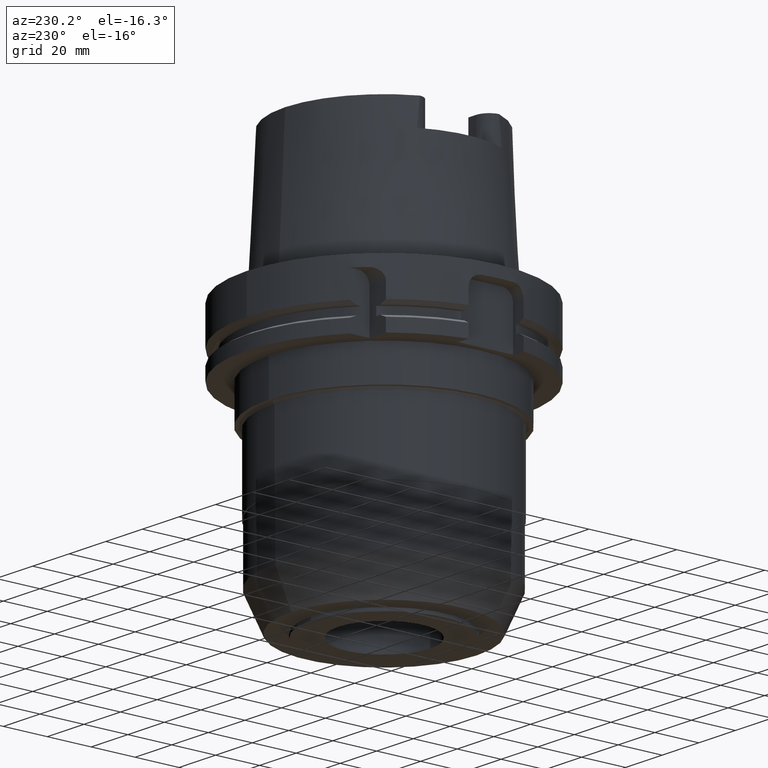
[diagram: clean part render]
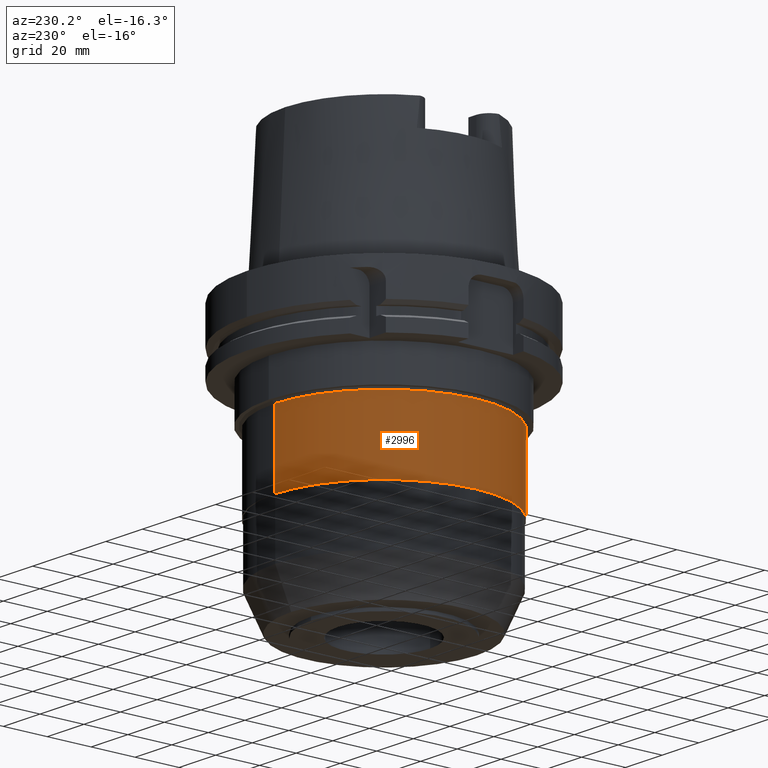
[diagram: same view with one face highlighted and labeled with its STEP entity id]
A machine part, auxiliary view. The second image highlights one B-rep face of the part: STEP entity #2996.
In plain terms, the highlighted cylindrical surface (partial cylindrical patch) has radius 49.85 mm, axis along (0, 0, -1).
Its self-contained STEP definition (entity closure, byte-faithful):
#819=CARTESIAN_POINT('',(0.E0,1.497130711958E-14,-7.89E1));
#820=DIRECTION('',(0.E0,0.E0,1.E0));
#821=DIRECTION('',(0.E0,1.E0,0.E0));
#822=AXIS2_PLACEMENT_3D('',#819,#820,#821);
#843=DIRECTION('',(0.E0,0.E0,-1.E0));
#844=VECTOR('',#843,3.29E1);
#845=CARTESIAN_POINT('',(0.E0,4.985E1,-4.6E1));
#846=LINE('',#845,#844);
#850=DIRECTION('',(0.E0,0.E0,-1.E0));
#851=VECTOR('',#850,3.29E1);
#852=CARTESIAN_POINT('',(0.E0,-4.985E1,-4.6E1));
#853=LINE('',#852,#851);
#864=CARTESIAN_POINT('',(0.E0,0.E0,-4.6E1));
#865=DIRECTION('',(0.E0,0.E0,-1.E0));
#866=DIRECTION('',(0.E0,-1.E0,0.E0));
#867=AXIS2_PLACEMENT_3D('',#864,#865,#866);
#2117=CARTESIAN_POINT('',(0.E0,-4.985E1,-7.89E1));
#2118=CARTESIAN_POINT('',(0.E0,4.985E1,-7.89E1));
#2119=VERTEX_POINT('',#2117);
#2120=VERTEX_POINT('',#2118);
#2121=CARTESIAN_POINT('',(0.E0,4.985E1,-4.6E1));
#2122=VERTEX_POINT('',#2121);
#2123=CARTESIAN_POINT('',(0.E0,-4.985E1,-4.6E1));
#2124=VERTEX_POINT('',#2123);
#2984=CARTESIAN_POINT('',(0.E0,1.497130711958E-14,7.225E1));
#2985=DIRECTION('',(0.E0,0.E0,-1.E0));
#2986=DIRECTION('',(0.E0,-1.E0,0.E0));
#2987=AXIS2_PLACEMENT_3D('',#2984,#2985,#2986);
#2988=CYLINDRICAL_SURFACE('',#2987,4.985E1);
#2989=ORIENTED_EDGE('',*,*,#2974,.F.);
#2991=ORIENTED_EDGE('',*,*,#2990,.F.);
#2992=ORIENTED_EDGE('',*,*,#2977,.T.);
#2993=ORIENTED_EDGE('',*,*,#2960,.F.);
#2994=EDGE_LOOP('',(#2989,#2991,#2992,#2993));
#2995=FACE_OUTER_BOUND('',#2994,.F.);
#823=CIRCLE('',#822,4.985E1);
#868=CIRCLE('',#867,4.985E1);
#2960=EDGE_CURVE('',#2120,#2119,#823,.T.);
#2974=EDGE_CURVE('',#2122,#2120,#846,.T.);
#2977=EDGE_CURVE('',#2124,#2119,#853,.T.);
#2990=EDGE_CURVE('',#2124,#2122,#868,.T.);
#2996=ADVANCED_FACE('',(#2995),#2988,.T.);